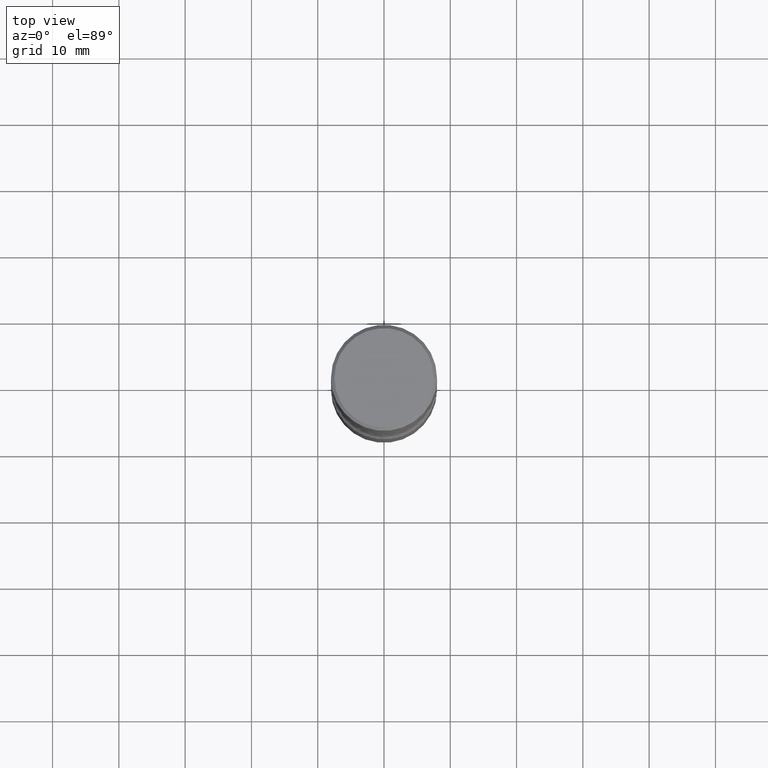
[diagram: clean part render]
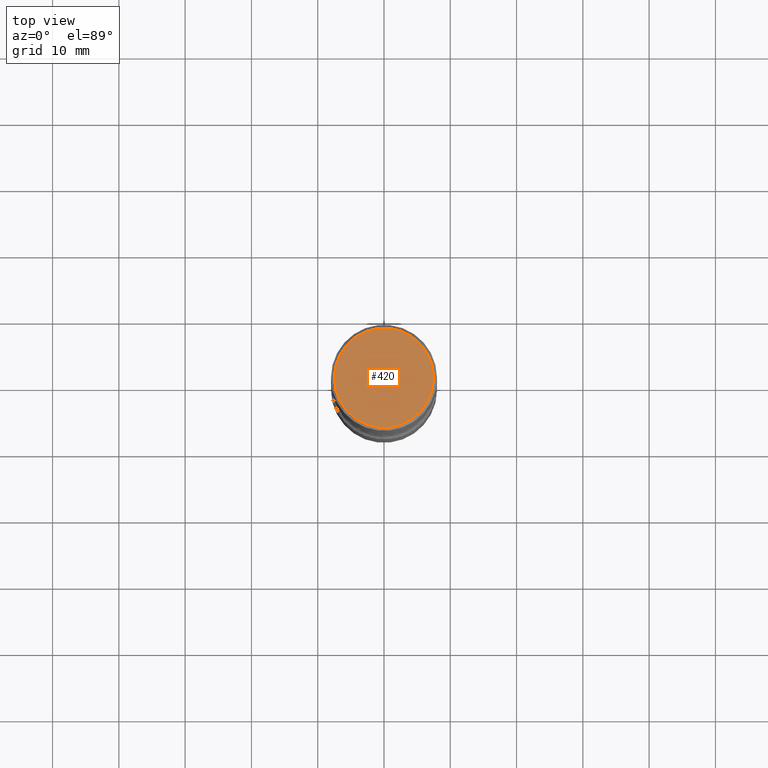
[diagram: same view with one face highlighted and labeled with its STEP entity id]
A machine part, top view. The second image highlights one B-rep face of the part: STEP entity #420.
In plain terms, the highlighted planar face has unit normal (0, -0, -1).
Its self-contained STEP definition (entity closure, byte-faithful):
#56 = ORIENTED_EDGE ( 'NONE', *, *, #228, .T. ) ;
#65 = DIRECTION ( 'NONE',  ( 1.000000000000000000, -6.982962677686267499E-15, 4.876053491004735468E-29 ) ) ;
#87 = DIRECTION ( 'NONE',  ( -1.000000000000000000, 6.982962677686265922E-15, -4.876176775795935793E-29 ) ) ;
#159 = CARTESIAN_POINT ( 'NONE',  ( -3.131554243005659264E-46, 4.471029511141341874E-32, 1.280553747030123384E-17 ) ) ;
#163 = AXIS2_PLACEMENT_3D ( 'NONE', #496, #249, #65 ) ;
#172 = CARTESIAN_POINT ( 'NONE',  ( 2.059624841783564063E-15, 0.2949499999999999345, -1.023409652156634942E-15 ) ) ;
#183 = AXIS2_PLACEMENT_3D ( 'NONE', #172, #349, #87 ) ;
#214 = PLANE ( 'NONE',  #183 ) ;
#228 = EDGE_CURVE ( 'NONE', #319, #241, #334, .T. ) ;
#241 = VERTEX_POINT ( 'NONE', #258 ) ;
#249 = DIRECTION ( 'NONE',  ( -2.445468806185136597E-29, 3.491481338843145583E-15, 1.000000000000000000 ) ) ;
#258 = CARTESIAN_POINT ( 'NONE',  ( 0.2949499999999999345, -2.127023677808860075E-15, 1.280553747031587399E-17 ) ) ;
#291 = ORIENTED_EDGE ( 'NONE', *, *, #531, .T. ) ;
#319 = VERTEX_POINT ( 'NONE', #422 ) ;
#334 = CIRCLE ( 'NONE', #560, 0.2949499999999999345 ) ;
#343 = DIRECTION ( 'NONE',  ( 1.000000000000000000, -6.982962677686267499E-15, 4.876053491004735468E-29 ) ) ;
#349 = DIRECTION ( 'NONE',  ( 2.438088387897960049E-29, -3.491481338843145188E-15, -1.000000000000000000 ) ) ;
#360 = EDGE_LOOP ( 'NONE', ( #56, #291 ) ) ;
#386 = CIRCLE ( 'NONE', #163, 0.2949499999999999345 ) ;
#420 = ADVANCED_FACE ( 'NONE', ( #421 ), #214, .F. ) ;
#421 = FACE_OUTER_BOUND ( 'NONE', #360, .T. ) ;
#422 = CARTESIAN_POINT ( 'NONE',  ( -0.2949499999999999345, 2.094539655171995318E-15, 1.280553747028670770E-17 ) ) ;
#496 = CARTESIAN_POINT ( 'NONE',  ( -3.131554243005659264E-46, 4.471029511141341874E-32, 1.280553747030123384E-17 ) ) ;
#502 = DIRECTION ( 'NONE',  ( -2.445468806185136597E-29, 3.491481338843145583E-15, 1.000000000000000000 ) ) ;
#531 = EDGE_CURVE ( 'NONE', #241, #319, #386, .T. ) ;
#560 = AXIS2_PLACEMENT_3D ( 'NONE', #159, #502, #343 ) ;